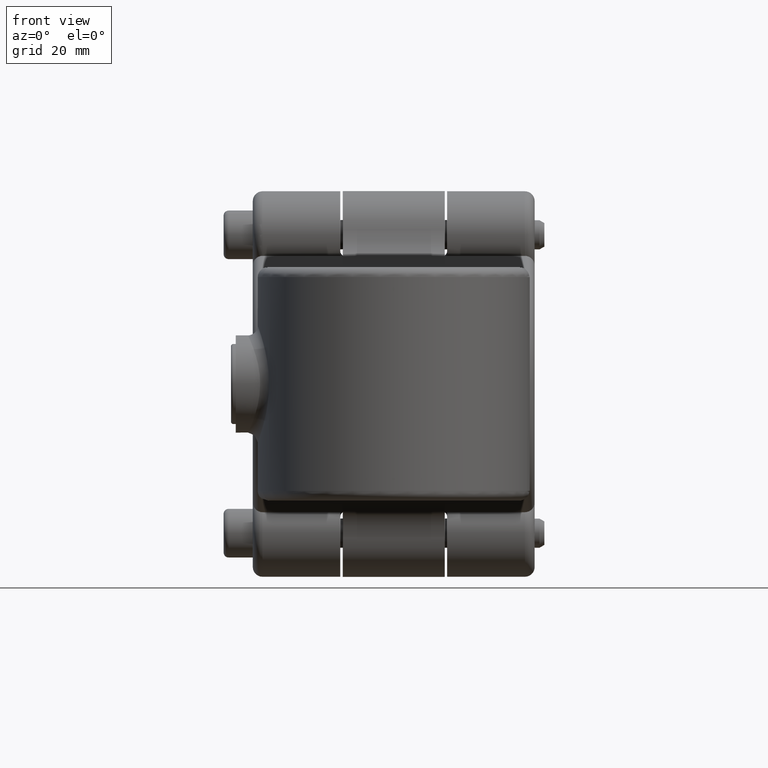
[diagram: clean part render]
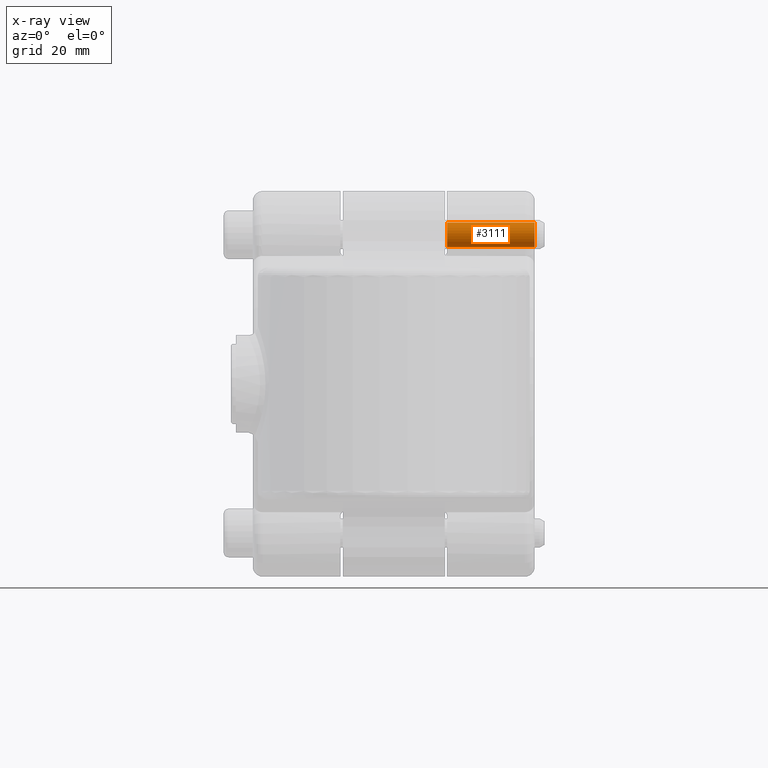
[diagram: x-ray — body ghosted, one internal face saturated and labeled with its STEP entity id]
A machine part, front view, then the same camera in x-ray: the body is ghosted and one INTERNAL B-rep face — a face not visible from any outside direction — is saturated and labeled: STEP entity #3111.
In plain terms, the highlighted cylindrical surface (bore or boss wall) has radius 2.5 mm, axis along (-1, 0, 0).
Its self-contained STEP definition (entity closure, byte-faithful):
#121 = CIRCLE ( 'NONE', #6133, 2.499999999999995115 ) ;
#603 = EDGE_LOOP ( 'NONE', ( #6941 ) ) ;
#624 = DIRECTION ( 'NONE',  ( 1.000000000000000000, 0.000000000000000000, 0.000000000000000000 ) ) ;
#1272 = DIRECTION ( 'NONE',  ( 1.000000000000000000, 0.000000000000000000, 0.000000000000000000 ) ) ;
#1330 = ORIENTED_EDGE ( 'NONE', *, *, #3281, .F. ) ;
#1343 = CARTESIAN_POINT ( 'NONE',  ( 30.69999999999999929, 9.906691417764470486, -11.00000000000000000 ) ) ;
#1457 = CARTESIAN_POINT ( 'NONE',  ( 33.19999999999999574, 9.906691417764470486, -11.00000000000000000 ) ) ;
#1883 = EDGE_LOOP ( 'NONE', ( #1330 ) ) ;
#2039 = CARTESIAN_POINT ( 'NONE',  ( 30.69999999999999929, 9.906691417764470486, -29.00000000000000000 ) ) ;
#2346 = VERTEX_POINT ( 'NONE', #1457 ) ;
#2659 = DIRECTION ( 'NONE',  ( 0.000000000000000000, 0.000000000000000000, 1.000000000000000000 ) ) ;
#2787 = AXIS2_PLACEMENT_3D ( 'NONE', #4810, #5320, #624 ) ;
#3003 = FACE_OUTER_BOUND ( 'NONE', #1883, .T. ) ;
#3045 = CARTESIAN_POINT ( 'NONE',  ( 33.19999999999999574, 9.906691417764470486, -29.00000000000000000 ) ) ;
#3111 = ADVANCED_FACE ( 'NONE', ( #3003, #5556 ), #6104, .F. ) ;
#3237 = DIRECTION ( 'NONE',  ( 1.000000000000000000, 0.000000000000000000, 0.000000000000000000 ) ) ;
#3281 = EDGE_CURVE ( 'NONE', #4915, #4915, #121, .T. ) ;
#4308 = AXIS2_PLACEMENT_3D ( 'NONE', #1343, #4808, #1272 ) ;
#4808 = DIRECTION ( 'NONE',  ( -0.000000000000000000, -0.000000000000000000, 1.000000000000000000 ) ) ;
#4810 = CARTESIAN_POINT ( 'NONE',  ( 30.69999999999999929, 9.906691417764470486, -11.00000000000000000 ) ) ;
#4915 = VERTEX_POINT ( 'NONE', #3045 ) ;
#5320 = DIRECTION ( 'NONE',  ( -0.000000000000000000, -0.000000000000000000, 1.000000000000000000 ) ) ;
#5556 = FACE_OUTER_BOUND ( 'NONE', #603, .T. ) ;
#6104 = CYLINDRICAL_SURFACE ( 'NONE', #4308, 2.499999999999995115 ) ;
#6133 = AXIS2_PLACEMENT_3D ( 'NONE', #2039, #2659, #3237 ) ;
#6380 = CIRCLE ( 'NONE', #2787, 2.499999999999995115 ) ;
#6864 = EDGE_CURVE ( 'NONE', #2346, #2346, #6380, .T. ) ;
#6941 = ORIENTED_EDGE ( 'NONE', *, *, #6864, .T. ) ;